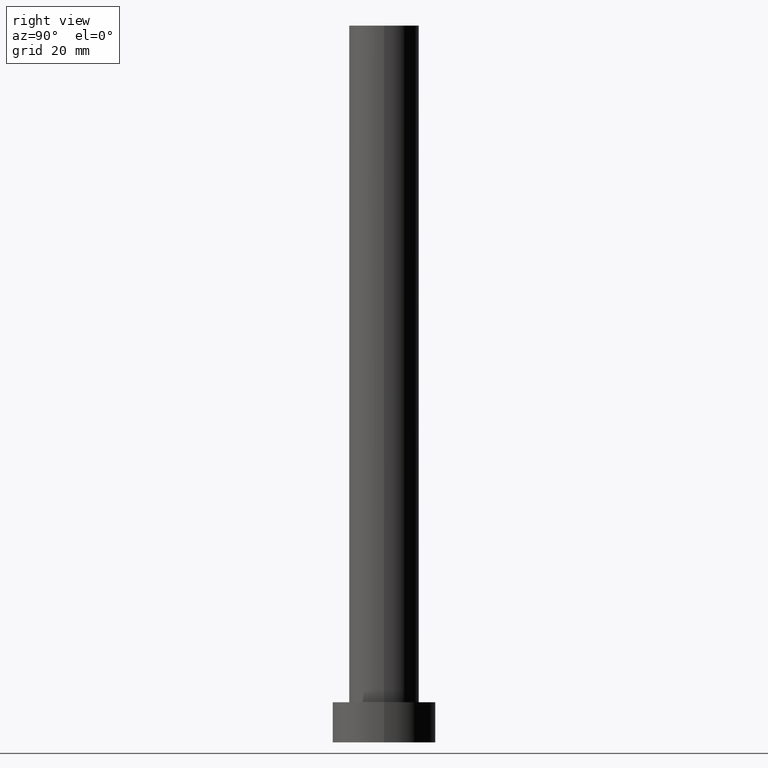
[diagram: clean part render]
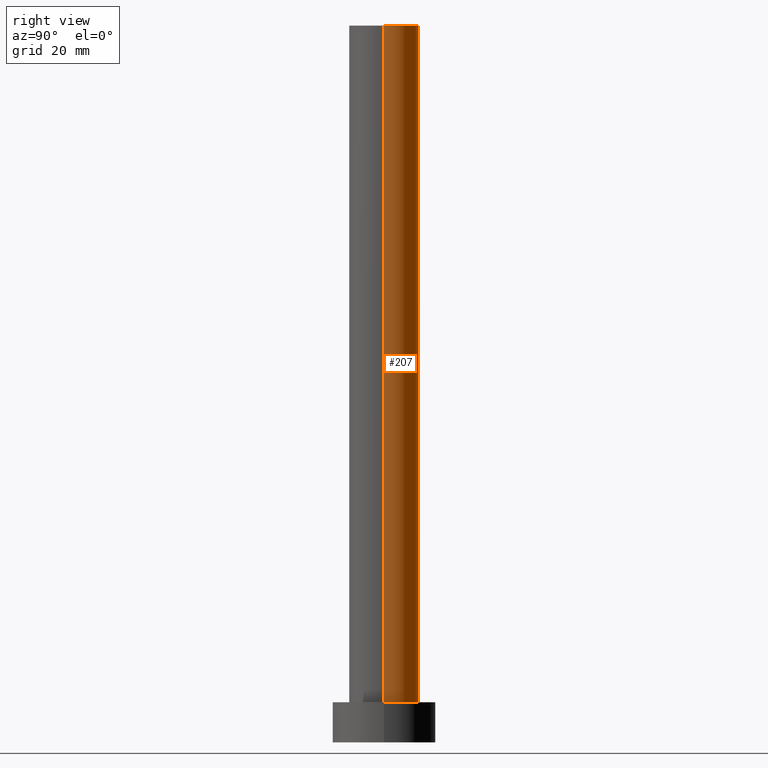
[diagram: same view with one face highlighted and labeled with its STEP entity id]
A machine part, right view. The second image highlights one B-rep face of the part: STEP entity #207.
In plain terms, the highlighted cylindrical surface (edge-blend (fillet) strip) has radius 6.1 mm, axis along (-0, -0, -1).
Its self-contained STEP definition (entity closure, byte-faithful):
#2 = VERTEX_POINT ( 'NONE', #203 ) ;
#9 = VERTEX_POINT ( 'NONE', #216 ) ;
#16 = VECTOR ( 'NONE', #65, 1000.000000000000000 ) ;
#17 = ORIENTED_EDGE ( 'NONE', *, *, #158, .T. ) ;
#28 = CARTESIAN_POINT ( 'NONE',  ( 6.099999999999999645, 7.470345474798854293E-16, 7.000000000000000000 ) ) ;
#31 = DIRECTION ( 'NONE',  ( -0.000000000000000000, -0.000000000000000000, -1.000000000000000000 ) ) ;
#37 = VERTEX_POINT ( 'NONE', #28 ) ;
#47 = CYLINDRICAL_SURFACE ( 'NONE', #237, 6.099999999999999645 ) ;
#49 = CARTESIAN_POINT ( 'NONE',  ( 0.000000000000000000, 0.000000000000000000, 125.0000000000000000 ) ) ;
#50 = EDGE_CURVE ( 'NONE', #37, #122, #54, .T. ) ;
#54 = CIRCLE ( 'NONE', #124, 6.099999999999999645 ) ;
#55 = EDGE_CURVE ( 'NONE', #2, #122, #164, .T. ) ;
#65 = DIRECTION ( 'NONE',  ( -0.000000000000000000, -0.000000000000000000, -1.000000000000000000 ) ) ;
#69 = DIRECTION ( 'NONE',  ( 0.000000000000000000, 0.000000000000000000, 1.000000000000000000 ) ) ;
#80 = CIRCLE ( 'NONE', #199, 6.099999999999999645 ) ;
#95 = EDGE_LOOP ( 'NONE', ( #97, #17, #114, #160 ) ) ;
#97 = ORIENTED_EDGE ( 'NONE', *, *, #229, .F. ) ;
#103 = DIRECTION ( 'NONE',  ( 1.000000000000000000, 0.000000000000000000, 0.000000000000000000 ) ) ;
#104 = CARTESIAN_POINT ( 'NONE',  ( -6.099999999999999645, 0.000000000000000000, 7.000000000000000000 ) ) ;
#114 = ORIENTED_EDGE ( 'NONE', *, *, #50, .T. ) ;
#122 = VERTEX_POINT ( 'NONE', #104 ) ;
#124 = AXIS2_PLACEMENT_3D ( 'NONE', #144, #69, #206 ) ;
#125 = DIRECTION ( 'NONE',  ( 0.000000000000000000, 0.000000000000000000, 1.000000000000000000 ) ) ;
#126 = CARTESIAN_POINT ( 'NONE',  ( -6.099999999999999645, 0.000000000000000000, 125.0000000000000000 ) ) ;
#129 = DIRECTION ( 'NONE',  ( -0.000000000000000000, -0.000000000000000000, -1.000000000000000000 ) ) ;
#130 = FACE_OUTER_BOUND ( 'NONE', #95, .T. ) ;
#144 = CARTESIAN_POINT ( 'NONE',  ( 0.000000000000000000, 0.000000000000000000, 7.000000000000000000 ) ) ;
#158 = EDGE_CURVE ( 'NONE', #9, #37, #227, .T. ) ;
#160 = ORIENTED_EDGE ( 'NONE', *, *, #55, .F. ) ;
#164 = LINE ( 'NONE', #126, #205 ) ;
#167 = CARTESIAN_POINT ( 'NONE',  ( 0.000000000000000000, 0.000000000000000000, 125.0000000000000000 ) ) ;
#186 = CARTESIAN_POINT ( 'NONE',  ( 6.099999999999999645, 7.470345474798854293E-16, 125.0000000000000000 ) ) ;
#199 = AXIS2_PLACEMENT_3D ( 'NONE', #167, #125, #103 ) ;
#203 = CARTESIAN_POINT ( 'NONE',  ( -6.099999999999999645, 0.000000000000000000, 125.0000000000000000 ) ) ;
#205 = VECTOR ( 'NONE', #31, 1000.000000000000000 ) ;
#206 = DIRECTION ( 'NONE',  ( 1.000000000000000000, 0.000000000000000000, 0.000000000000000000 ) ) ;
#207 = ADVANCED_FACE ( 'NONE', ( #130 ), #47, .T. ) ;
#212 = DIRECTION ( 'NONE',  ( -1.000000000000000000, 0.000000000000000000, 0.000000000000000000 ) ) ;
#216 = CARTESIAN_POINT ( 'NONE',  ( 6.099999999999999645, 7.470345474798854293E-16, 125.0000000000000000 ) ) ;
#227 = LINE ( 'NONE', #186, #16 ) ;
#229 = EDGE_CURVE ( 'NONE', #9, #2, #80, .T. ) ;
#237 = AXIS2_PLACEMENT_3D ( 'NONE', #49, #129, #212 ) ;